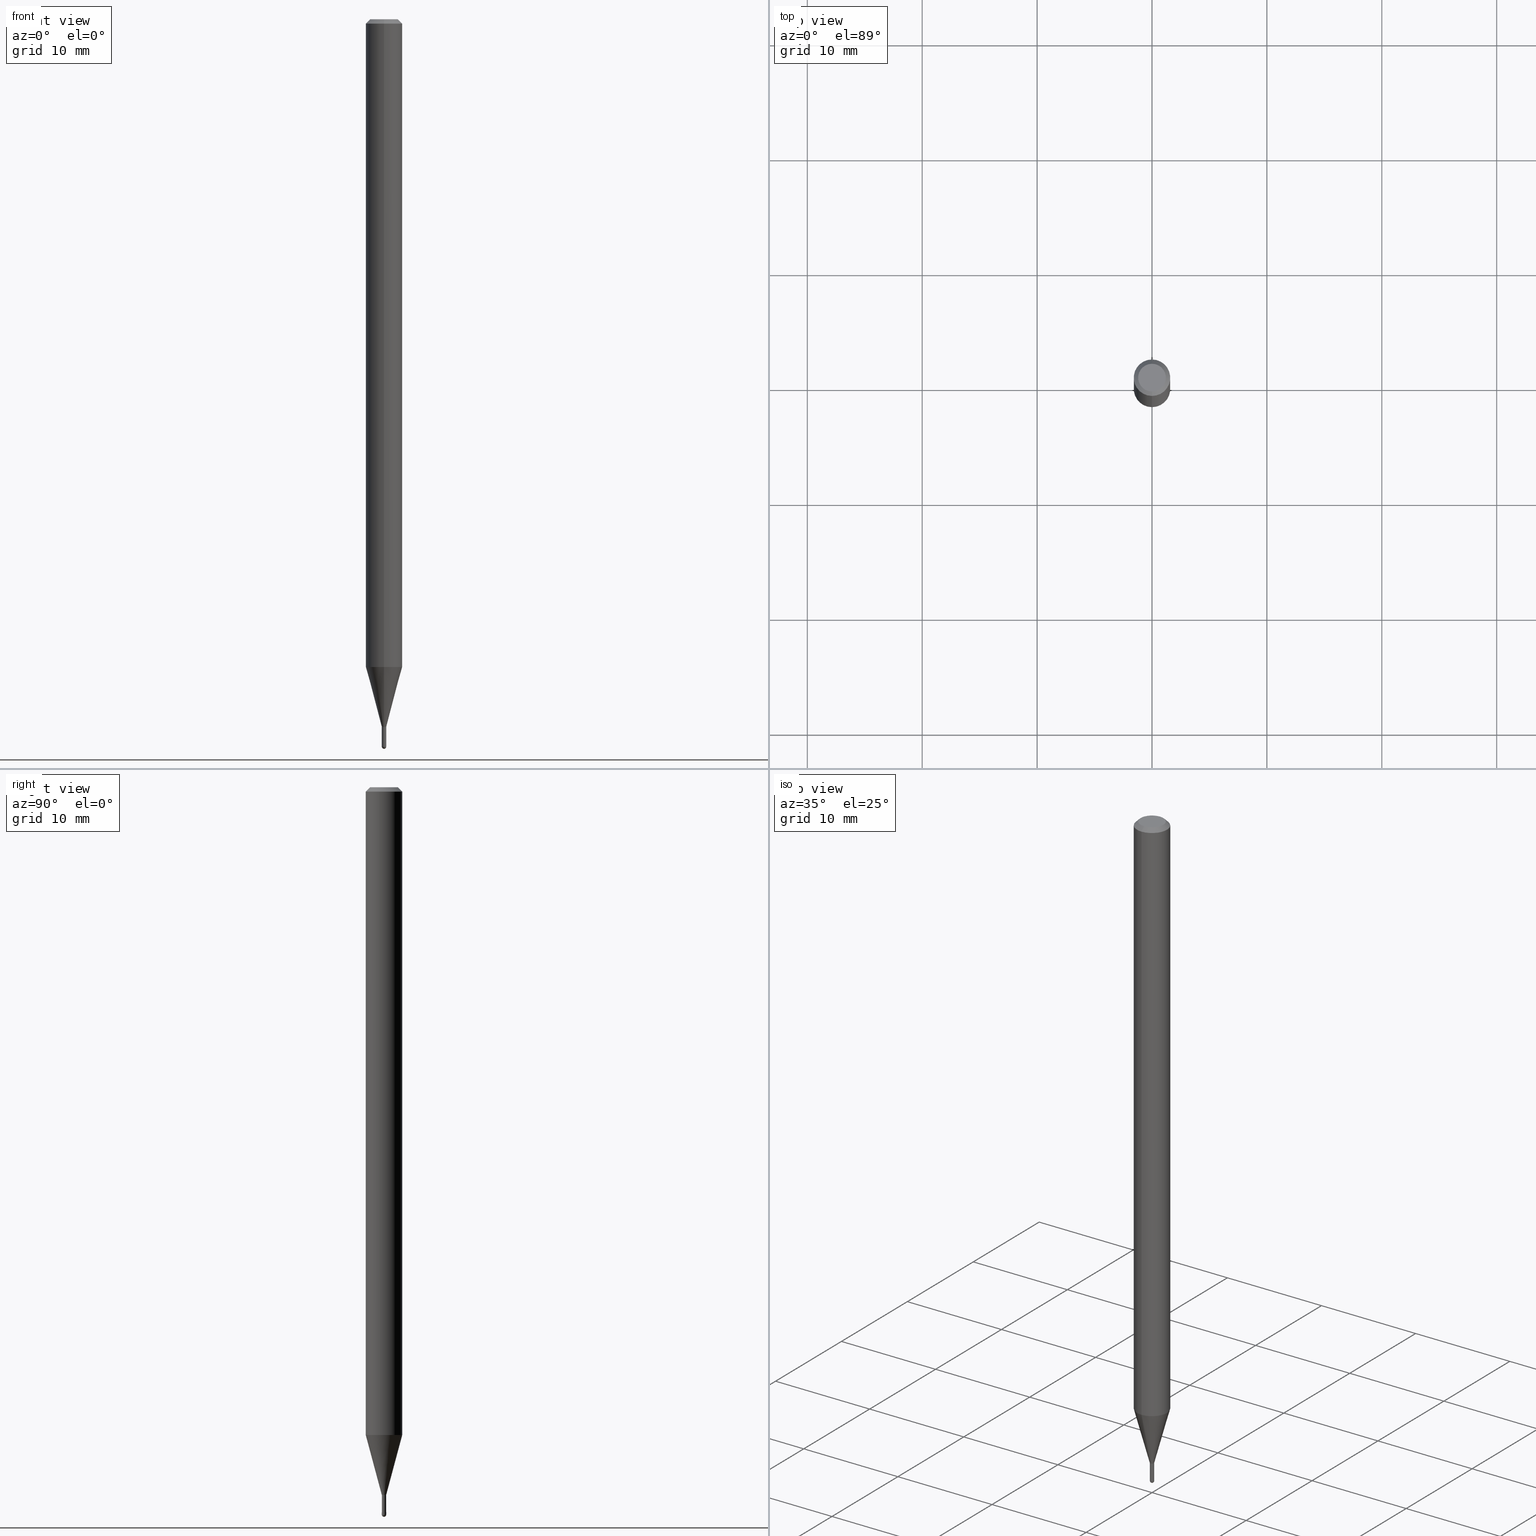
[diagram: canonical four-view strip — front | top / right | iso, engineering-drawing reading convention]
A machine part, canonical four-view strip (front | top / right | iso — engineering-drawing reading convention). The complete STEP part file that produces these views, byte-faithful:
ISO-10303-21;
HEADER;
FILE_DESCRIPTION (( 'STEP AP203' ),
    '1' );
FILE_NAME ('01500.STEP',
    '2024-03-07T19:35:34',
    ( '' ),
    ( '' ),
    'SwSTEP 2.0',
    'SolidWorks 2023',
    '' );
FILE_SCHEMA (( 'CONFIG_CONTROL_DESIGN' ));
ENDSEC;

DATA;
#1 = DIRECTION ( 'NONE',  ( -6.982962677686265922E-15, -1.000000000000000000, 3.483106191921935554E-15 ) ) ;
#2 = APPROVAL_ROLE ( '' ) ;
#3 = DIRECTION ( 'NONE',  ( 1.000000000000000000, -6.982962677686153115E-15, 0.000000000000000000 ) ) ;
#4 = ORIENTED_EDGE ( 'NONE', *, *, #381, .T. ) ;
#5 = EDGE_LOOP ( 'NONE', ( #114, #237, #392, #421 ) ) ;
#6 = DIRECTION ( 'NONE',  ( -6.982962677686265922E-15, -1.000000000000000000, 0.000000000000000000 ) ) ;
#7 = FACE_OUTER_BOUND ( 'NONE', #477, .T. ) ;
#8 = DIRECTION ( 'NONE',  ( -2.445325725904081225E-29, 3.491686237949240934E-15, 1.000000000000000000 ) ) ;
#9 = CIRCLE ( 'NONE', #50, 0.007499999999999925997 ) ;
#10 = DIRECTION ( 'NONE',  ( -2.445325725904081225E-29, 3.491686237949240540E-15, 1.000000000000000000 ) ) ;
#11 = DIRECTION ( 'NONE',  ( -2.445325725904081225E-29, 3.491686237949240540E-15, 1.000000000000000000 ) ) ;
#12 = EDGE_LOOP ( 'NONE', ( #331, #149, #401, #435, #500 ) ) ;
#13 = CARTESIAN_POINT ( 'NONE',  ( 4.364351673553919652E-16, 0.06249999999999995143, -0.01500000000000022669 ) ) ;
#14 = DIRECTION ( 'NONE',  ( 1.839019923739649225E-15, 0.2588190451025318417, 0.9659258262890653146 ) ) ;
#15 = VERTEX_POINT ( 'NONE', #157 ) ;
#16 = CARTESIAN_POINT ( 'NONE',  ( 3.667988588856124307E-31, -5.237529356923864655E-17, -0.01500000000000000812 ) ) ;
#17 = APPROVAL_ROLE ( '' ) ;
#18 = LOCAL_TIME ( 14, 35, 34.00000000000000000, #382 ) ;
#19 = ORIENTED_EDGE ( 'NONE', *, *, #365, .T. ) ;
#20 = CARTESIAN_POINT ( 'NONE',  ( 5.427980493560302591E-29, -7.750625852600574086E-15, -2.219737205583718342 ) ) ;
#21 = ORIENTED_EDGE ( 'NONE', *, *, #82, .F. ) ;
#22 = MECHANICAL_CONTEXT ( 'NONE', #184, 'mechanical' ) ;
#23 = VERTEX_POINT ( 'NONE', #39 ) ;
#24 = CC_DESIGN_DATE_AND_TIME_ASSIGNMENT ( #259, #181, ( #263 ) ) ;
#25 =( NAMED_UNIT ( * ) PLANE_ANGLE_UNIT ( ) SI_UNIT ( $, .RADIAN. ) );
#26 = ADVANCED_FACE ( 'NONE', ( #200 ), #486, .T. ) ;
#27 = FACE_OUTER_BOUND ( 'NONE', #88, .T. ) ;
#28 = APPROVAL_STATUS ( 'not_yet_approved' ) ;
#29 = LINE ( 'NONE', #307, #35 ) ;
#30 = EDGE_CURVE ( 'NONE', #112, #15, #357, .T. ) ;
#31 = DIRECTION ( 'NONE',  ( -6.982962677686265922E-15, -1.000000000000000000, 0.000000000000000000 ) ) ;
#32 = PERSON_AND_ORGANIZATION_ROLE ( 'design_supplier' ) ;
#33 = ORIENTED_EDGE ( 'NONE', *, *, #381, .F. ) ;
#34 = LOCAL_TIME ( 14, 35, 34.00000000000000000, #65 ) ;
#35 = VECTOR ( 'NONE', #105, 39.37007874015748143 ) ;
#36 = DIRECTION ( 'NONE',  ( -6.982962677686265922E-15, -1.000000000000000000, 0.000000000000000000 ) ) ;
#37 = CONICAL_SURFACE ( 'NONE', #326, 0.06250000000000000000, 0.7853981633974483900 ) ;
#38 = SECURITY_CLASSIFICATION_LEVEL ( 'unclassified' ) ;
#39 = CARTESIAN_POINT ( 'NONE',  ( -4.364351673553373859E-16, -0.06250000000000775768, -2.219737205583718342 ) ) ;
#40 = ORIENTED_EDGE ( 'NONE', *, *, #363, .T. ) ;
#41 = ORIENTED_EDGE ( 'NONE', *, *, #43, .F. ) ;
#42 = AXIS2_PLACEMENT_3D ( 'NONE', #409, #51, #167 ) ;
#43 = EDGE_CURVE ( 'NONE', #361, #60, #195, .T. ) ;
#44 = FACE_OUTER_BOUND ( 'NONE', #256, .T. ) ;
#45 = APPROVAL ( #28, 'UNSPECIFIED' ) ;
#46 = CYLINDRICAL_SURFACE ( 'NONE', #177, 0.06250000000000000000 ) ;
#47 = LINE ( 'NONE', #288, #208 ) ;
#48 = CARTESIAN_POINT ( 'NONE',  ( 3.840629472727447874E-16, 0.04749999999999999362, -1.747056831868805136E-16 ) ) ;
#49 = DIRECTION ( 'NONE',  ( -2.445468806185136597E-29, 3.491481338843145583E-15, 1.000000000000000000 ) ) ;
#50 = AXIS2_PLACEMENT_3D ( 'NONE', #452, #254, #282 ) ;
#51 = DIRECTION ( 'NONE',  ( -2.445468806185136597E-29, 3.491481338843145583E-15, 1.000000000000000000 ) ) ;
#52 = DIRECTION ( 'NONE',  ( -4.851104656540964275E-15, -0.7071067811865500152, -0.7071067811865450192 ) ) ;
#53 = ORIENTED_EDGE ( 'NONE', *, *, #277, .F. ) ;
#54 = FACE_OUTER_BOUND ( 'NONE', #512, .T. ) ;
#55 = ORIENTED_EDGE ( 'NONE', *, *, #158, .F. ) ;
#56 = ORIENTED_EDGE ( 'NONE', *, *, #69, .T. ) ;
#57 = AXIS2_PLACEMENT_3D ( 'NONE', #231, #70, #387 ) ;
#58 = ADVANCED_FACE ( 'NONE', ( #437 ), #74, .F. ) ;
#59 = CARTESIAN_POINT ( 'NONE',  ( 5.427980493560302591E-29, -7.750625852600574086E-15, -2.219737205583718342 ) ) ;
#60 = VERTEX_POINT ( 'NONE', #484 ) ;
#61 = CC_DESIGN_PERSON_AND_ORGANIZATION_ASSIGNMENT ( #431, #32, ( #352 ) ) ;
#62 = DIRECTION ( 'NONE',  ( -6.982962677686265922E-15, -1.000000000000000000, 4.370956789862821150E-15 ) ) ;
#63 = DIRECTION ( 'NONE',  ( 2.445325725904081225E-29, -3.491686237949240934E-15, -1.000000000000000000 ) ) ;
#64 = DIRECTION ( 'NONE',  ( -6.982962677686265922E-15, -1.000000000000000000, 0.000000000000000000 ) ) ;
#65 = COORDINATED_UNIVERSAL_TIME_OFFSET ( 5, 0, .BEHIND. ) ;
#66 = ADVANCED_FACE ( 'NONE', ( #7 ), #164, .F. ) ;
#67 = CARTESIAN_POINT ( 'NONE',  ( 3.667988588856124307E-31, -5.237529356923864655E-17, -0.01500000000000000812 ) ) ;
#68 = EDGE_LOOP ( 'NONE', ( #94, #469, #41, #55, #489 ) ) ;
#69 = EDGE_CURVE ( 'NONE', #179, #418, #132, .T. ) ;
#70 = DIRECTION ( 'NONE',  ( -2.445468806185136597E-29, 3.491481338843145583E-15, 1.000000000000000000 ) ) ;
#71 = ORIENTED_EDGE ( 'NONE', *, *, #360, .F. ) ;
#72 = CIRCLE ( 'NONE', #368, 0.007000000000000122444 ) ;
#73 = APPROVAL_DATE_TIME ( #270, #446 ) ;
#74 = PLANE ( 'NONE',  #423 ) ;
#75 = ORIENTED_EDGE ( 'NONE', *, *, #116, .T. ) ;
#76 = ADVANCED_FACE ( 'NONE', ( #89 ), #247, .F. ) ;
#77 = ADVANCED_FACE ( 'NONE', ( #54 ), #37, .T. ) ;
#78 = APPROVAL_PERSON_ORGANIZATION ( #456, #45, #17 ) ;
#79 = FACE_OUTER_BOUND ( 'NONE', #92, .T. ) ;
#80 = DIRECTION ( 'NONE',  ( -1.000000000000000000, 7.105427357601001070E-15, -4.926315508542082329E-29 ) ) ;
#81 = CARTESIAN_POINT ( 'NONE',  ( 0.007500000000000124623, -8.637051961963230878E-15, -2.492500000000000160 ) ) ;
#82 = EDGE_CURVE ( 'NONE', #15, #475, #461, .T. ) ;
#83 = DIRECTION ( 'NONE',  ( -2.445325725904081225E-29, 3.491686237949240934E-15, 1.000000000000000000 ) ) ;
#84 = CARTESIAN_POINT ( 'NONE',  ( 0.007500000000000122888, -8.519214466777275048E-15, -2.424999999999999822 ) ) ;
#85 = APPROVAL_PERSON_ORGANIZATION ( #474, #152, #2 ) ;
#86 = DIRECTION ( 'NONE',  ( -6.982962677686265922E-15, -1.000000000000000000, 3.483106191921935554E-15 ) ) ;
#87 = CARTESIAN_POINT ( 'NONE',  ( 6.095330999416453954E-29, -8.702517237066541600E-15, -2.492500000000000160 ) ) ;
#88 = EDGE_LOOP ( 'NONE', ( #176, #494 ) ) ;
#89 = FACE_OUTER_BOUND ( 'NONE', #216, .T. ) ;
#90 = ADVANCED_BREP_SHAPE_REPRESENTATION ( '01500', ( #194, #199, #324 ), #173 ) ;
#91 = LINE ( 'NONE', #126, #438 ) ;
#92 = EDGE_LOOP ( 'NONE', ( #375, #239, #134, #130 ) ) ;
#93 = COORDINATED_UNIVERSAL_TIME_OFFSET ( 5, 0, .BEHIND. ) ;
#94 = ORIENTED_EDGE ( 'NONE', *, *, #30, .T. ) ;
#95 = CALENDAR_DATE ( 2024, 7, 3 ) ;
#96 = AXIS2_PLACEMENT_3D ( 'NONE', #323, #481, #198 ) ;
#97 = AXIS2_PLACEMENT_3D ( 'NONE', #485, #49, #129 ) ;
#98 = EDGE_LOOP ( 'NONE', ( #33, #284, #182, #450 ) ) ;
#99 = AXIS2_PLACEMENT_3D ( 'NONE', #154, #359, #319 ) ;
#100 = PERSON_AND_ORGANIZATION_ROLE ( 'creator' ) ;
#101 = CARTESIAN_POINT ( 'NONE',  ( 5.929914885317396466E-29, -8.467339127026908092E-15, -2.424999999999999822 ) ) ;
#102 = CARTESIAN_POINT ( 'NONE',  ( 0.000000000000000000, 0.000000000000000000, 0.000000000000000000 ) ) ;
#103 = LINE ( 'NONE', #345, #325 ) ;
#104 = AXIS2_PLACEMENT_3D ( 'NONE', #234, #229, #196 ) ;
#105 = DIRECTION ( 'NONE',  ( -4.937700262164674260E-15, -0.7071067811865632269, 0.7071067811865319186 ) ) ;
#106 = ORIENTED_EDGE ( 'NONE', *, *, #116, .F. ) ;
#107 = EDGE_CURVE ( 'NONE', #273, #418, #329, .T. ) ;
#108 = DIRECTION ( 'NONE',  ( -1.000000000000000000, 6.982962677686265922E-15, -4.876176775795935793E-29 ) ) ;
#109 = SHAPE_DEFINITION_REPRESENTATION ( #136, #90 ) ;
#110 = EDGE_LOOP ( 'NONE', ( #439, #4, #302, #155 ) ) ;
#111 = CALENDAR_DATE ( 2024, 7, 3 ) ;
#112 = VERTEX_POINT ( 'NONE', #213 ) ;
#113 = VECTOR ( 'NONE', #14, 39.37007874015748143 ) ;
#114 = ORIENTED_EDGE ( 'NONE', *, *, #365, .F. ) ;
#115 = EDGE_CURVE ( 'NONE', #298, #425, #203, .T. ) ;
#116 = EDGE_CURVE ( 'NONE', #459, #418, #272, .T. ) ;
#117 = AXIS2_PLACEMENT_3D ( 'NONE', #226, #424, #504 ) ;
#118 = AXIS2_PLACEMENT_3D ( 'NONE', #441, #8, #413 ) ;
#119 = CARTESIAN_POINT ( 'NONE',  ( 6.198867957022339690E-29, -8.606697909742809641E-15, -2.500000000000000000 ) ) ;
#120 = AXIS2_PLACEMENT_3D ( 'NONE', #356, #143, #3 ) ;
#121 = CONICAL_SURFACE ( 'NONE', #403, 0.007500000000000048295, 0.2617993877991574014 ) ;
#122 = CARTESIAN_POINT ( 'NONE',  ( 5.929914885317395344E-29, -8.467339127026908092E-15, -2.424999999999999822 ) ) ;
#123 = CARTESIAN_POINT ( 'NONE',  ( 5.929914885317395344E-29, -8.467339127026908092E-15, -2.424999999999999822 ) ) ;
#124 = DIRECTION ( 'NONE',  ( 5.024295867788190974E-15, 0.7071067811865681119, 0.7071067811865270336 ) ) ;
#125 = DIRECTION ( 'NONE',  ( 2.445325725904081225E-29, -3.491686237949240934E-15, -1.000000000000000000 ) ) ;
#126 = CARTESIAN_POINT ( 'NONE',  ( -4.364351673553916201E-16, -0.06250000000000000000, 2.182303898718275337E-16 ) ) ;
#127 = ORIENTED_EDGE ( 'NONE', *, *, #360, .T. ) ;
#128 = DIRECTION ( 'NONE',  ( -2.445325725904081225E-29, 3.491686237949240934E-15, 1.000000000000000000 ) ) ;
#129 = DIRECTION ( 'NONE',  ( 1.000000000000000000, -6.982962677686153115E-15, 0.000000000000000000 ) ) ;
#130 = ORIENTED_EDGE ( 'NONE', *, *, #449, .F. ) ;
#131 = CIRCLE ( 'NONE', #362, 0.007499999999999925997 ) ;
#132 = LINE ( 'NONE', #13, #483 ) ;
#133 = EDGE_CURVE ( 'NONE', #166, #475, #131, .T. ) ;
#134 = ORIENTED_EDGE ( 'NONE', *, *, #321, .F. ) ;
#135 = CC_DESIGN_PERSON_AND_ORGANIZATION_ASSIGNMENT ( #278, #314, ( #352 ) ) ;
#136 = PRODUCT_DEFINITION_SHAPE ( 'NONE', 'NONE',  #263 ) ;
#137 = ORIENTED_EDGE ( 'NONE', *, *, #207, .F. ) ;
#138 = DIRECTION ( 'NONE',  ( 0.000000000000000000, 0.000000000000000000, 1.000000000000000000 ) ) ;
#139 = CIRCLE ( 'NONE', #422, 0.007500000000000046560 ) ;
#140 = CARTESIAN_POINT ( 'NONE',  ( 5.329070518206695387E-17, 0.007499999999991556823, -2.424499999999999655 ) ) ;
#141 = CARTESIAN_POINT ( 'NONE',  ( 5.237222008270715590E-17, 0.007499999999991656570, -2.424999999999999822 ) ) ;
#142 = CARTESIAN_POINT ( 'NONE',  ( 0.000000000000000000, 0.000000000000000000, 0.000000000000000000 ) ) ;
#143 = DIRECTION ( 'NONE',  ( -2.445468806185136597E-29, 3.491481338843145583E-15, 1.000000000000000000 ) ) ;
#144 = AXIS2_PLACEMENT_3D ( 'NONE', #287, #245, #205 ) ;
#145 = CC_DESIGN_APPROVAL ( #446, ( #352 ) ) ;
#146 = CONICAL_SURFACE ( 'NONE', #427, 0.06250000000000000000, 0.7853981633974483900 ) ;
#147 = CYLINDRICAL_SURFACE ( 'NONE', #57, 0.007500000000000122888 ) ;
#148 = PERSON_AND_ORGANIZATION ( #264, #467 ) ;
#149 = ORIENTED_EDGE ( 'NONE', *, *, #82, .T. ) ;
#150 = ADVANCED_FACE ( 'NONE', ( #490 ), #46, .T. ) ;
#151 = FACE_OUTER_BOUND ( 'NONE', #453, .T. ) ;
#152 = APPROVAL ( #436, 'UNSPECIFIED' ) ;
#153 = APPROVAL_ROLE ( '' ) ;
#154 = CARTESIAN_POINT ( 'NONE',  ( 5.930261854998954902E-29, -8.466842246694626786E-15, -2.424999999999999822 ) ) ;
#155 = ORIENTED_EDGE ( 'NONE', *, *, #506, .F. ) ;
#156 = ORIENTED_EDGE ( 'NONE', *, *, #107, .F. ) ;
#157 = CARTESIAN_POINT ( 'NONE',  ( -0.007500000000000124623, -8.531389036698576237E-15, -2.492500000000000160 ) ) ;
#158 = EDGE_CURVE ( 'NONE', #335, #361, #454, .T. ) ;
#159 = EDGE_CURVE ( 'NONE', #170, #179, #406, .T. ) ;
#160 = SPHERICAL_SURFACE ( 'NONE', #96, 0.007499999999999925997 ) ;
#161 = AXIS2_PLACEMENT_3D ( 'NONE', #268, #165, #333 ) ;
#162 = DIRECTION ( 'NONE',  ( 6.982962677686265922E-15, 1.000000000000000000, -3.491686237949240540E-15 ) ) ;
#163 = CARTESIAN_POINT ( 'NONE',  ( 5.929914885317395344E-29, -8.467339127026908092E-15, -2.424999999999999822 ) ) ;
#164 = PLANE ( 'NONE',  #260 ) ;
#165 = DIRECTION ( 'NONE',  ( -2.445325725904081225E-29, 3.491686237949240934E-15, 1.000000000000000000 ) ) ;
#166 = VERTEX_POINT ( 'NONE', #119 ) ;
#167 = DIRECTION ( 'NONE',  ( 1.000000000000000000, -6.982962677686153115E-15, 0.000000000000000000 ) ) ;
#168 = EDGE_CURVE ( 'NONE', #179, #170, #493, .T. ) ;
#169 = CARTESIAN_POINT ( 'NONE',  ( 6.180206253617509250E-29, -8.580971042251167723E-15, -2.492500000000000160 ) ) ;
#170 = VERTEX_POINT ( 'NONE', #366 ) ;
#171 = LOCAL_TIME ( 14, 35, 34.00000000000000000, #353 ) ;
#172 = AXIS2_PLACEMENT_3D ( 'NONE', #141, #348, #108 ) ;
#173 =( GEOMETRIC_REPRESENTATION_CONTEXT ( 3 ) GLOBAL_UNCERTAINTY_ASSIGNED_CONTEXT ( ( #414 ) ) GLOBAL_UNIT_ASSIGNED_CONTEXT ( ( #344, #25, #218 ) ) REPRESENTATION_CONTEXT ( 'NONE', 'WORKASPACE' ) );
#174 = DIRECTION ( 'NONE',  ( -2.445468806185136877E-29, 3.491481338843145188E-15, 1.000000000000000000 ) ) ;
#175 = CALENDAR_DATE ( 2024, 7, 3 ) ;
#176 = ORIENTED_EDGE ( 'NONE', *, *, #43, .T. ) ;
#177 = AXIS2_PLACEMENT_3D ( 'NONE', #411, #128, #296 ) ;
#178 = DIRECTION ( 'NONE',  ( -2.445325725904081225E-29, 3.491686237949240934E-15, 1.000000000000000000 ) ) ;
#179 = VERTEX_POINT ( 'NONE', #48 ) ;
#180 = ADVANCED_FACE ( 'NONE', ( #209 ), #146, .T. ) ;
#181 = DATE_TIME_ROLE ( 'creation_date' ) ;
#182 = ORIENTED_EDGE ( 'NONE', *, *, #506, .T. ) ;
#183 = DIRECTION ( 'NONE',  ( -2.445325725904081225E-29, 3.491686237949240934E-15, 1.000000000000000000 ) ) ;
#184 = APPLICATION_CONTEXT ( 'configuration controlled 3d designs of mechanical parts and assemblies' ) ;
#185 = CARTESIAN_POINT ( 'NONE',  ( 5.928692222454444399E-29, -8.465593283907933867E-15, -2.424499999999999655 ) ) ;
#186 = CALENDAR_DATE ( 2024, 7, 3 ) ;
#187 = ORIENTED_EDGE ( 'NONE', *, *, #303, .T. ) ;
#188 = DIRECTION ( 'NONE',  ( -2.445325725904081225E-29, 3.491686237949240934E-15, 1.000000000000000000 ) ) ;
#189 = PERSON_AND_ORGANIZATION ( #264, #467 ) ;
#190 = ORIENTED_EDGE ( 'NONE', *, *, #212, .F. ) ;
#191 = ADVANCED_FACE ( 'NONE', ( #266 ), #121, .T. ) ;
#192 = VECTOR ( 'NONE', #497, 39.37007874015748854 ) ;
#193 = VECTOR ( 'NONE', #124, 39.37007874015748143 ) ;
#194 = MANIFOLD_SOLID_BREP ( 'Body-Move/Copy2[1]', #341 ) ;
#195 = CIRCLE ( 'NONE', #99, 0.007500000000000122888 ) ;
#196 = DIRECTION ( 'NONE',  ( -6.982962677686265922E-15, -1.000000000000000000, 0.000000000000000000 ) ) ;
#197 = DATE_TIME_ROLE ( 'classification_date' ) ;
#198 = DIRECTION ( 'NONE',  ( 6.982962677686265922E-15, 1.000000000000000000, 0.000000000000000000 ) ) ;
#199 = MANIFOLD_SOLID_BREP ( 'Body-Move/Copy2[2]', #289 ) ;
#200 = FACE_OUTER_BOUND ( 'NONE', #457, .T. ) ;
#201 = ORIENTED_EDGE ( 'NONE', *, *, #159, .F. ) ;
#202 = CONICAL_SURFACE ( 'NONE', #269, 0.007500000000000048295, 0.2617993877991574014 ) ;
#203 = CIRCLE ( 'NONE', #498, 0.007500000000000048295 ) ;
#204 = ADVANCED_FACE ( 'NONE', ( #472 ), #202, .T. ) ;
#205 = DIRECTION ( 'NONE',  ( -6.982962677686266711E-15, -1.000000000000000000, 3.491686237949241329E-15 ) ) ;
#206 = CARTESIAN_POINT ( 'NONE',  ( 4.973799150326717702E-17, 0.006999999999991654391, -2.424999999999999822 ) ) ;
#207 = EDGE_CURVE ( 'NONE', #425, #298, #336, .T. ) ;
#208 = VECTOR ( 'NONE', #52, 39.37007874015748143 ) ;
#209 = FACE_OUTER_BOUND ( 'NONE', #383, .T. ) ;
#210 = DIRECTION ( 'NONE',  ( -2.445325725904081225E-29, 3.491686237949240934E-15, 1.000000000000000000 ) ) ;
#211 = EDGE_LOOP ( 'NONE', ( #156, #301, #378, #190 ) ) ;
#212 = EDGE_CURVE ( 'NONE', #418, #459, #242, .T. ) ;
#213 = CARTESIAN_POINT ( 'NONE',  ( 5.237222008270854874E-17, 0.007499999999991383351, -2.492500000000000160 ) ) ;
#214 = DIRECTION ( 'NONE',  ( -2.445325725904081225E-29, 3.491686237949240540E-15, 1.000000000000000000 ) ) ;
#215 = DESIGN_CONTEXT ( 'detailed design', #241, 'design' ) ;
#216 = EDGE_LOOP ( 'NONE', ( #402, #187, #240, #499 ) ) ;
#217 = DIRECTION ( 'NONE',  ( -2.445325725904081225E-29, 3.491686237949240934E-15, 1.000000000000000000 ) ) ;
#218 =( NAMED_UNIT ( * ) SI_UNIT ( $, .STERADIAN. ) SOLID_ANGLE_UNIT ( ) );
#219 = ADVANCED_FACE ( 'NONE', ( #426 ), #147, .T. ) ;
#220 = ORIENTED_EDGE ( 'NONE', *, *, #419, .F. ) ;
#221 = SECURITY_CLASSIFICATION ( '', '', #38 ) ;
#222 = CARTESIAN_POINT ( 'NONE',  ( -5.329070518194631362E-17, -0.007500000000008666401, -2.492500000000000160 ) ) ;
#223 = AXIS2_PLACEMENT_3D ( 'NONE', #142, #463, #271 ) ;
#224 = VERTEX_POINT ( 'NONE', #390 ) ;
#225 = ADVANCED_FACE ( 'NONE', ( #275 ), #434, .T. ) ;
#226 = CARTESIAN_POINT ( 'NONE',  ( 5.930261854998954902E-29, -8.466842246694626786E-15, -2.424999999999999822 ) ) ;
#227 = ORIENTED_EDGE ( 'NONE', *, *, #308, .T. ) ;
#228 = DIRECTION ( 'NONE',  ( -2.445325725904081225E-29, 3.491686237949240934E-15, 1.000000000000000000 ) ) ;
#229 = DIRECTION ( 'NONE',  ( -2.445325725904081225E-29, 3.491686237949240934E-15, 1.000000000000000000 ) ) ;
#230 = PERSON_AND_ORGANIZATION ( #264, #467 ) ;
#231 = CARTESIAN_POINT ( 'NONE',  ( 0.000000000000000000, 0.000000000000000000, 0.000000000000000000 ) ) ;
#232 = PERSON_AND_ORGANIZATION_ROLE ( 'classification_officer' ) ;
#233 = ADVANCED_FACE ( 'NONE', ( #355 ), #351, .T. ) ;
#234 = CARTESIAN_POINT ( 'NONE',  ( 5.929914885317396466E-29, -8.467339127026908092E-15, -2.424999999999999822 ) ) ;
#235 = VERTEX_POINT ( 'NONE', #393 ) ;
#236 = CARTESIAN_POINT ( 'NONE',  ( 2.486899575160921825E-16, 0.007499999999991580242, -2.424999999999999822 ) ) ;
#237 = ORIENTED_EDGE ( 'NONE', *, *, #419, .T. ) ;
#238 = AXIS2_PLACEMENT_3D ( 'NONE', #169, #367, #291 ) ;
#239 = ORIENTED_EDGE ( 'NONE', *, *, #416, .T. ) ;
#240 = ORIENTED_EDGE ( 'NONE', *, *, #316, .T. ) ;
#241 = APPLICATION_CONTEXT ( 'configuration controlled 3d designs of mechanical parts and assemblies' ) ;
#242 = CIRCLE ( 'NONE', #380, 0.06250000000000000000 ) ;
#243 = LOCAL_TIME ( 14, 35, 34.00000000000000000, #93 ) ;
#244 = DIRECTION ( 'NONE',  ( -2.445468806185136597E-29, 3.491481338843145583E-15, 1.000000000000000000 ) ) ;
#245 = DIRECTION ( 'NONE',  ( -2.445325725904081225E-29, 3.491686237949240934E-15, 1.000000000000000000 ) ) ;
#246 = CARTESIAN_POINT ( 'NONE',  ( -0.007500000000000122888, 5.329070518200838711E-17, -3.689201317691239259E-31 ) ) ;
#247 = CYLINDRICAL_SURFACE ( 'NONE', #398, 0.007500000000000048295 ) ;
#248 = DIRECTION ( 'NONE',  ( -2.445468806185136877E-29, 3.491481338843145188E-15, 1.000000000000000000 ) ) ;
#249 = DIRECTION ( 'NONE',  ( 4.937700262164548042E-15, 0.7071067811865451302, -0.7071067811865499042 ) ) ;
#250 = DIRECTION ( 'NONE',  ( 1.000000000000000000, -6.982962677686153115E-15, 0.000000000000000000 ) ) ;
#251 = ORIENTED_EDGE ( 'NONE', *, *, #168, .T. ) ;
#252 = CARTESIAN_POINT ( 'NONE',  ( 0.000000000000000000, 0.000000000000000000, 0.000000000000000000 ) ) ;
#253 = ADVANCED_FACE ( 'NONE', ( #151 ), #306, .F. ) ;
#254 = DIRECTION ( 'NONE',  ( 1.000000000000000000, -6.982962677686265922E-15, 4.883557194083112340E-29 ) ) ;
#255 = ORIENTED_EDGE ( 'NONE', *, *, #133, .T. ) ;
#256 = EDGE_LOOP ( 'NONE', ( #386, #255, #21, #343 ) ) ;
#257 = AXIS2_PLACEMENT_3D ( 'NONE', #87, #244, #250 ) ;
#258 = CONICAL_SURFACE ( 'NONE', #280, 0.007000000000000122444, 0.7853981633974739252 ) ;
#259 = DATE_AND_TIME ( #95, #18 ) ;
#260 = AXIS2_PLACEMENT_3D ( 'NONE', #412, #487, #162 ) ;
#261 = ORIENTED_EDGE ( 'NONE', *, *, #107, .T. ) ;
#262 = LINE ( 'NONE', #338, #192 ) ;
#263 = PRODUCT_DEFINITION ( 'UNKNOWN', '', #352, #215 ) ;
#264 = PERSON ( 'UNSPECIFIED', 'UNSPECIFIED', 'UNSPECIFIED', ('UNSPECIFIED'), ('UNSPECIFIED'), ('UNSPECIFIED') ) ;
#265 = PRODUCT ( '01500', '01500', '', ( #22 ) ) ;
#266 = FACE_OUTER_BOUND ( 'NONE', #98, .T. ) ;
#267 = ADVANCED_FACE ( 'NONE', ( #27 ), #313, .F. ) ;
#268 = CARTESIAN_POINT ( 'NONE',  ( 5.928692222454444399E-29, -8.465593283907933867E-15, -2.424499999999999655 ) ) ;
#269 = AXIS2_PLACEMENT_3D ( 'NONE', #349, #188, #31 ) ;
#270 = DATE_AND_TIME ( #476, #34 ) ;
#271 = DIRECTION ( 'NONE',  ( -6.982962677686265922E-15, -1.000000000000000000, 3.491686237949240540E-15 ) ) ;
#272 = CIRCLE ( 'NONE', #340, 0.06250000000000000000 ) ;
#273 = VERTEX_POINT ( 'NONE', #505 ) ;
#274 = AXIS2_PLACEMENT_3D ( 'NONE', #354, #276, #350 ) ;
#275 = FACE_OUTER_BOUND ( 'NONE', #68, .T. ) ;
#276 = DIRECTION ( 'NONE',  ( -2.445325725904081225E-29, 3.491686237949240934E-15, 1.000000000000000000 ) ) ;
#277 = EDGE_CURVE ( 'NONE', #224, #440, #29, .T. ) ;
#278 = PERSON_AND_ORGANIZATION ( #264, #467 ) ;
#279 = ORIENTED_EDGE ( 'NONE', *, *, #303, .F. ) ;
#280 = AXIS2_PLACEMENT_3D ( 'NONE', #122, #293, #448 ) ;
#281 = ORIENTED_EDGE ( 'NONE', *, *, #212, .T. ) ;
#282 = DIRECTION ( 'NONE',  ( 6.982962677686266711E-15, 1.000000000000000000, 0.000000000000000000 ) ) ;
#283 = AXIS2_PLACEMENT_3D ( 'NONE', #20, #228, #300 ) ;
#284 = ORIENTED_EDGE ( 'NONE', *, *, #115, .T. ) ;
#285 = AXIS2_PLACEMENT_3D ( 'NONE', #442, #337, #479 ) ;
#286 = CC_DESIGN_PERSON_AND_ORGANIZATION_ASSIGNMENT ( #420, #100, ( #263 ) ) ;
#287 = CARTESIAN_POINT ( 'NONE',  ( 2.164256779750745039E-46, -3.090347242165496582E-32, -8.850586884291580234E-18 ) ) ;
#288 = CARTESIAN_POINT ( 'NONE',  ( -4.287811248607203282E-16, -0.06250000000000005551, -0.01499999999999979128 ) ) ;
#289 = CLOSED_SHELL ( 'NONE', ( #76, #26, #180, #150, #204, #191, #233, #77, #66, #58, #408, #253 ) ) ;
#290 = DIRECTION ( 'NONE',  ( -6.982962677686265922E-15, -1.000000000000000000, 3.491686237949240934E-15 ) ) ;
#291 = DIRECTION ( 'NONE',  ( 6.982962677686265922E-15, 1.000000000000000000, 0.000000000000000000 ) ) ;
#292 = DIRECTION ( 'NONE',  ( -2.445325725904080944E-29, 3.491686237949240540E-15, 1.000000000000000000 ) ) ;
#293 = DIRECTION ( 'NONE',  ( -2.445325725904081225E-29, 3.491686237949240934E-15, 1.000000000000000000 ) ) ;
#294 = CC_DESIGN_SECURITY_CLASSIFICATION ( #221, ( #352 ) ) ;
#295 = ORIENTED_EDGE ( 'NONE', *, *, #159, .T. ) ;
#296 = DIRECTION ( 'NONE',  ( -6.982962677686265922E-15, -1.000000000000000000, 3.491686237949240540E-15 ) ) ;
#297 = LINE ( 'NONE', #374, #113 ) ;
#298 = VERTEX_POINT ( 'NONE', #236 ) ;
#299 = DIRECTION ( 'NONE',  ( 6.982962677686265922E-15, 1.000000000000000000, -3.483106191921935554E-15 ) ) ;
#300 = DIRECTION ( 'NONE',  ( -6.982962677686265922E-15, -1.000000000000000000, 4.370956789862821150E-15 ) ) ;
#301 = ORIENTED_EDGE ( 'NONE', *, *, #509, .T. ) ;
#302 = ORIENTED_EDGE ( 'NONE', *, *, #495, .F. ) ;
#303 = EDGE_CURVE ( 'NONE', #298, #315, #103, .T. ) ;
#304 = CIRCLE ( 'NONE', #118, 0.007000000000000122444 ) ;
#305 = LENGTH_MEASURE_WITH_UNIT ( LENGTH_MEASURE( 0.02539999999999999897 ), #377 );
#306 = CYLINDRICAL_SURFACE ( 'NONE', #310, 0.007500000000000048295 ) ;
#307 = CARTESIAN_POINT ( 'NONE',  ( -4.888073874374541287E-17, -0.007000000000008589629, -2.424999999999999822 ) ) ;
#308 = EDGE_CURVE ( 'NONE', #440, #315, #139, .T. ) ;
#309 = DIRECTION ( 'NONE',  ( -2.445468806185136597E-29, 3.491481338843145583E-15, 1.000000000000000000 ) ) ;
#310 = AXIS2_PLACEMENT_3D ( 'NONE', #317, #503, #389 ) ;
#311 = AXIS2_PLACEMENT_3D ( 'NONE', #59, #178, #62 ) ;
#312 = ORIENTED_EDGE ( 'NONE', *, *, #495, .T. ) ;
#313 = PLANE ( 'NONE',  #172 ) ;
#314 = PERSON_AND_ORGANIZATION_ROLE ( 'creator' ) ;
#315 = VERTEX_POINT ( 'NONE', #140 ) ;
#316 = EDGE_CURVE ( 'NONE', #315, #440, #482, .T. ) ;
#317 = CARTESIAN_POINT ( 'NONE',  ( 0.000000000000000000, 0.000000000000000000, 0.000000000000000000 ) ) ;
#318 = APPROVAL_STATUS ( 'not_yet_approved' ) ;
#319 = DIRECTION ( 'NONE',  ( 1.000000000000000000, -6.982962677686282488E-15, 0.000000000000000000 ) ) ;
#320 = ORIENTED_EDGE ( 'NONE', *, *, #69, .F. ) ;
#321 = EDGE_CURVE ( 'NONE', #335, #112, #502, .T. ) ;
#322 = EDGE_CURVE ( 'NONE', #23, #459, #91, .T. ) ;
#323 = CARTESIAN_POINT ( 'NONE',  ( 6.180206253617509250E-29, -8.580971042251167723E-15, -2.492500000000000160 ) ) ;
#324 = AXIS2_PLACEMENT_3D ( 'NONE', #102, #138, #347 ) ;
#325 = VECTOR ( 'NONE', #468, 39.37007874015748143 ) ;
#326 = AXIS2_PLACEMENT_3D ( 'NONE', #327, #125, #299 ) ;
#327 = CARTESIAN_POINT ( 'NONE',  ( 3.667988588856124307E-31, -5.237529356923864655E-17, -0.01500000000000000812 ) ) ;
#328 = CARTESIAN_POINT ( 'NONE',  ( -5.237222008258802558E-17, -0.007500000000008515480, -2.424999999999999822 ) ) ;
#329 = LINE ( 'NONE', #373, #429 ) ;
#330 = LINE ( 'NONE', #206, #193 ) ;
#331 = ORIENTED_EDGE ( 'NONE', *, *, #342, .F. ) ;
#332 = DIRECTION ( 'NONE',  ( -7.105427357601001070E-15, -1.000000000000000000, 0.000000000000000000 ) ) ;
#333 = DIRECTION ( 'NONE',  ( -6.982962677686265922E-15, -1.000000000000000000, 0.000000000000000000 ) ) ;
#334 = CC_DESIGN_APPROVAL ( #152, ( #221 ) ) ;
#335 = VERTEX_POINT ( 'NONE', #81 ) ;
#336 = CIRCLE ( 'NONE', #104, 0.007500000000000048295 ) ;
#337 = DIRECTION ( 'NONE',  ( -2.445325725904081225E-29, 3.491686237949240934E-15, 1.000000000000000000 ) ) ;
#338 = CARTESIAN_POINT ( 'NONE',  ( -5.237222008258802558E-17, -0.007500000000008515480, -2.424999999999999822 ) ) ;
#339 = ORIENTED_EDGE ( 'NONE', *, *, #168, .F. ) ;
#340 = AXIS2_PLACEMENT_3D ( 'NONE', #16, #83, #86 ) ;
#341 = CLOSED_SHELL ( 'NONE', ( #225, #455, #267, #405, #219 ) ) ;
#342 = EDGE_CURVE ( 'NONE', #15, #60, #443, .T. ) ;
#343 = ORIENTED_EDGE ( 'NONE', *, *, #30, .F. ) ;
#344 =( CONVERSION_BASED_UNIT ( 'INCH', #305 ) LENGTH_UNIT ( ) NAMED_UNIT ( #372 ) );
#345 = CARTESIAN_POINT ( 'NONE',  ( 5.329070518200784477E-17, 0.007500000000000048295, -2.618764678461947427E-17 ) ) ;
#346 = CIRCLE ( 'NONE', #257, 0.007500000000000123755 ) ;
#347 = DIRECTION ( 'NONE',  ( 1.000000000000000000, 0.000000000000000000, 0.000000000000000000 ) ) ;
#348 = DIRECTION ( 'NONE',  ( 2.438088387897960049E-29, -3.491481338843145188E-15, -1.000000000000000000 ) ) ;
#349 = CARTESIAN_POINT ( 'NONE',  ( 5.929914885317396466E-29, -8.467339127026908092E-15, -2.424999999999999822 ) ) ;
#350 = DIRECTION ( 'NONE',  ( -6.982962677686265922E-15, -1.000000000000000000, 0.000000000000000000 ) ) ;
#351 = CYLINDRICAL_SURFACE ( 'NONE', #223, 0.06250000000000000000 ) ;
#352 = PRODUCT_DEFINITION_FORMATION_WITH_SPECIFIED_SOURCE ( 'ANY', '', #265, .NOT_KNOWN. ) ;
#353 = COORDINATED_UNIVERSAL_TIME_OFFSET ( 5, 0, .BEHIND. ) ;
#354 = CARTESIAN_POINT ( 'NONE',  ( 5.929914885317395344E-29, -8.467339127026908092E-15, -2.424999999999999822 ) ) ;
#355 = FACE_OUTER_BOUND ( 'NONE', #211, .T. ) ;
#356 = CARTESIAN_POINT ( 'NONE',  ( 6.095330999416453954E-29, -8.702517237066541600E-15, -2.492500000000000160 ) ) ;
#357 = CIRCLE ( 'NONE', #120, 0.007500000000000123755 ) ;
#358 = CC_DESIGN_DATE_AND_TIME_ASSIGNMENT ( #391, #197, ( #221 ) ) ;
#359 = DIRECTION ( 'NONE',  ( -2.445468806185136597E-29, 3.491481338843145583E-15, 1.000000000000000000 ) ) ;
#360 = EDGE_CURVE ( 'NONE', #170, #459, #47, .T. ) ;
#361 = VERTEX_POINT ( 'NONE', #84 ) ;
#362 = AXIS2_PLACEMENT_3D ( 'NONE', #496, #80, #332 ) ;
#363 = EDGE_CURVE ( 'NONE', #425, #440, #407, .T. ) ;
#364 = CARTESIAN_POINT ( 'NONE',  ( -4.364351673553912750E-16, -0.06250000000000005551, -0.01499999999999979128 ) ) ;
#365 = EDGE_CURVE ( 'NONE', #235, #315, #330, .T. ) ;
#366 = CARTESIAN_POINT ( 'NONE',  ( -3.773273898774340269E-16, -0.04749999999999999362, 1.570045094182973593E-16 ) ) ;
#367 = DIRECTION ( 'NONE',  ( -1.000000000000000000, 6.982962677686265922E-15, -4.883557194083112340E-29 ) ) ;
#368 = AXIS2_PLACEMENT_3D ( 'NONE', #163, #210, #6 ) ;
#369 = CARTESIAN_POINT ( 'NONE',  ( 3.667988588856124307E-31, -5.237529356923864655E-17, -0.01500000000000000812 ) ) ;
#370 = CARTESIAN_POINT ( 'NONE',  ( -5.237222008258820431E-17, -0.007500000000008537164, -2.424499999999999655 ) ) ;
#371 = ORIENTED_EDGE ( 'NONE', *, *, #433, .F. ) ;
#372 = DIMENSIONAL_EXPONENTS ( 1.000000000000000000, 0.000000000000000000, 0.000000000000000000, 0.000000000000000000, 0.000000000000000000, 0.000000000000000000, 0.000000000000000000 ) ;
#373 = CARTESIAN_POINT ( 'NONE',  ( 4.440892098500625669E-16, 0.06250000000000000000, -2.182303898718275337E-16 ) ) ;
#374 = CARTESIAN_POINT ( 'NONE',  ( 5.329070518206715109E-17, 0.007499999999991580242, -2.424999999999999822 ) ) ;
#375 = ORIENTED_EDGE ( 'NONE', *, *, #133, .F. ) ;
#376 = DIRECTION ( 'NONE',  ( -6.982962677686265922E-15, -1.000000000000000000, 0.000000000000000000 ) ) ;
#377 =( LENGTH_UNIT ( ) NAMED_UNIT ( * ) SI_UNIT ( $, .METRE. ) );
#378 = ORIENTED_EDGE ( 'NONE', *, *, #322, .T. ) ;
#379 = APPROVAL_PERSON_ORGANIZATION ( #189, #446, #153 ) ;
#380 = AXIS2_PLACEMENT_3D ( 'NONE', #67, #183, #1 ) ;
#381 = EDGE_CURVE ( 'NONE', #298, #273, #297, .T. ) ;
#382 = COORDINATED_UNIVERSAL_TIME_OFFSET ( 5, 0, .BEHIND. ) ;
#383 = EDGE_LOOP ( 'NONE', ( #201, #127, #75, #320 ) ) ;
#384 = CC_DESIGN_PERSON_AND_ORGANIZATION_ASSIGNMENT ( #148, #232, ( #221 ) ) ;
#385 = APPROVAL_DATE_TIME ( #458, #45 ) ;
#386 = ORIENTED_EDGE ( 'NONE', *, *, #416, .F. ) ;
#387 = DIRECTION ( 'NONE',  ( 1.000000000000000000, -6.982962677686267499E-15, 4.876176775795935793E-29 ) ) ;
#388 = APPLICATION_PROTOCOL_DEFINITION ( 'international standard', 'config_control_design', 1994, #241 ) ;
#389 = DIRECTION ( 'NONE',  ( -6.982962677686265922E-15, -1.000000000000000000, 3.491686237949240934E-15 ) ) ;
#390 = CARTESIAN_POINT ( 'NONE',  ( -4.888073874374541287E-17, -0.007000000000008589629, -2.424999999999999822 ) ) ;
#391 = DATE_AND_TIME ( #186, #491 ) ;
#392 = ORIENTED_EDGE ( 'NONE', *, *, #277, .T. ) ;
#393 = CARTESIAN_POINT ( 'NONE',  ( 5.151434834266715172E-17, 0.006999999999991654391, -2.424999999999999822 ) ) ;
#394 = CIRCLE ( 'NONE', #283, 0.06250000000000000000 ) ;
#395 = COORDINATED_UNIVERSAL_TIME_OFFSET ( 5, 0, .BEHIND. ) ;
#396 = ORIENTED_EDGE ( 'NONE', *, *, #308, .F. ) ;
#397 = VECTOR ( 'NONE', #248, 39.37007874015748143 ) ;
#398 = AXIS2_PLACEMENT_3D ( 'NONE', #252, #417, #290 ) ;
#399 = CC_DESIGN_PERSON_AND_ORGANIZATION_ASSIGNMENT ( #230, #501, ( #265 ) ) ;
#400 = APPROVAL_DATE_TIME ( #465, #152 ) ;
#401 = ORIENTED_EDGE ( 'NONE', *, *, #449, .T. ) ;
#402 = ORIENTED_EDGE ( 'NONE', *, *, #115, .F. ) ;
#403 = AXIS2_PLACEMENT_3D ( 'NONE', #101, #511, #64 ) ;
#404 = CIRCLE ( 'NONE', #117, 0.007500000000000122888 ) ;
#405 = ADVANCED_FACE ( 'NONE', ( #79 ), #410, .T. ) ;
#406 = CIRCLE ( 'NONE', #285, 0.04749999999999999362 ) ;
#407 = LINE ( 'NONE', #492, #460 ) ;
#408 = ADVANCED_FACE ( 'NONE', ( #488 ), #258, .T. ) ;
#409 = CARTESIAN_POINT ( 'NONE',  ( 6.095330999416453954E-29, -8.702517237066541600E-15, -2.492500000000000160 ) ) ;
#410 = SPHERICAL_SURFACE ( 'NONE', #238, 0.007499999999999925997 ) ;
#411 = CARTESIAN_POINT ( 'NONE',  ( 0.000000000000000000, 0.000000000000000000, 0.000000000000000000 ) ) ;
#412 = CARTESIAN_POINT ( 'NONE',  ( 3.316907271900976096E-16, 0.04749999999999999362, -1.702803897447347251E-16 ) ) ;
#413 = DIRECTION ( 'NONE',  ( -6.982962677686265922E-15, -1.000000000000000000, 0.000000000000000000 ) ) ;
#414 = UNCERTAINTY_MEASURE_WITH_UNIT (LENGTH_MEASURE( 1.000000000000000082E-05 ), #344, 'distance_accuracy_value', 'NONE');
#415 = EDGE_LOOP ( 'NONE', ( #312, #261, #106, #478 ) ) ;
#416 = EDGE_CURVE ( 'NONE', #166, #112, #9, .T. ) ;
#417 = DIRECTION ( 'NONE',  ( -2.445325725904081225E-29, 3.491686237949240934E-15, 1.000000000000000000 ) ) ;
#418 = VERTEX_POINT ( 'NONE', #445 ) ;
#419 = EDGE_CURVE ( 'NONE', #235, #224, #304, .T. ) ;
#420 = PERSON_AND_ORGANIZATION ( #264, #467 ) ;
#421 = ORIENTED_EDGE ( 'NONE', *, *, #316, .F. ) ;
#422 = AXIS2_PLACEMENT_3D ( 'NONE', #185, #430, #36 ) ;
#423 = AXIS2_PLACEMENT_3D ( 'NONE', #123, #292, #447 ) ;
#424 = DIRECTION ( 'NONE',  ( -2.445468806185136597E-29, 3.491481338843145583E-15, 1.000000000000000000 ) ) ;
#425 = VERTEX_POINT ( 'NONE', #328 ) ;
#426 = FACE_OUTER_BOUND ( 'NONE', #12, .T. ) ;
#427 = AXIS2_PLACEMENT_3D ( 'NONE', #369, #63, #507 ) ;
#428 = CARTESIAN_POINT ( 'NONE',  ( 0.000000000000000000, 0.000000000000000000, 0.000000000000000000 ) ) ;
#429 = VECTOR ( 'NONE', #10, 39.37007874015748143 ) ;
#430 = DIRECTION ( 'NONE',  ( -2.445325725904081225E-29, 3.491686237949240934E-15, 1.000000000000000000 ) ) ;
#431 = PERSON_AND_ORGANIZATION ( #264, #467 ) ;
#432 = ORIENTED_EDGE ( 'NONE', *, *, #433, .T. ) ;
#433 = EDGE_CURVE ( 'NONE', #224, #235, #72, .T. ) ;
#434 = CYLINDRICAL_SURFACE ( 'NONE', #466, 0.007500000000000122888 ) ;
#435 = ORIENTED_EDGE ( 'NONE', *, *, #158, .T. ) ;
#436 = APPROVAL_STATUS ( 'not_yet_approved' ) ;
#437 = FACE_OUTER_BOUND ( 'NONE', #508, .T. ) ;
#438 = VECTOR ( 'NONE', #214, 39.37007874015748143 ) ;
#439 = ORIENTED_EDGE ( 'NONE', *, *, #207, .T. ) ;
#440 = VERTEX_POINT ( 'NONE', #370 ) ;
#441 = CARTESIAN_POINT ( 'NONE',  ( 5.929914885317395344E-29, -8.467339127026908092E-15, -2.424999999999999822 ) ) ;
#442 = CARTESIAN_POINT ( 'NONE',  ( 2.164256779750745039E-46, -3.090347242165496582E-32, -8.850586884291580234E-18 ) ) ;
#443 = LINE ( 'NONE', #246, #397 ) ;
#444 = CARTESIAN_POINT ( 'NONE',  ( 5.929914885317396466E-29, -8.467339127026908092E-15, -2.424999999999999822 ) ) ;
#445 = CARTESIAN_POINT ( 'NONE',  ( 4.440892098501172448E-16, 0.06249999999999993755, -0.01500000000000022669 ) ) ;
#446 = APPROVAL ( #318, 'UNSPECIFIED' ) ;
#447 = DIRECTION ( 'NONE',  ( -6.982962677686265922E-15, -1.000000000000000000, 3.491686237949240540E-15 ) ) ;
#448 = DIRECTION ( 'NONE',  ( -6.982962677686265922E-15, -1.000000000000000000, 0.000000000000000000 ) ) ;
#449 = EDGE_CURVE ( 'NONE', #475, #335, #346, .T. ) ;
#450 = ORIENTED_EDGE ( 'NONE', *, *, #509, .F. ) ;
#451 = CARTESIAN_POINT ( 'NONE',  ( 0.007500000000000122888, -5.237222008264786191E-17, 3.657132581847011750E-31 ) ) ;
#452 = CARTESIAN_POINT ( 'NONE',  ( 6.180206253617509250E-29, -8.580971042251167723E-15, -2.492500000000000160 ) ) ;
#453 = EDGE_LOOP ( 'NONE', ( #279, #137, #40, #227 ) ) ;
#454 = LINE ( 'NONE', #451, #471 ) ;
#455 = ADVANCED_FACE ( 'NONE', ( #44 ), #160, .T. ) ;
#456 = PERSON_AND_ORGANIZATION ( #264, #467 ) ;
#457 = EDGE_LOOP ( 'NONE', ( #432, #19, #396, #53 ) ) ;
#458 = DATE_AND_TIME ( #175, #243 ) ;
#459 = VERTEX_POINT ( 'NONE', #364 ) ;
#460 = VECTOR ( 'NONE', #11, 39.37007874015748143 ) ;
#461 = CIRCLE ( 'NONE', #42, 0.007500000000000123755 ) ;
#462 = APPLICATION_PROTOCOL_DEFINITION ( 'international standard', 'config_control_design', 1994, #184 ) ;
#463 = DIRECTION ( 'NONE',  ( -2.445325725904081225E-29, 3.491686237949240934E-15, 1.000000000000000000 ) ) ;
#464 = DIRECTION ( 'NONE',  ( 1.000000000000000000, -6.982962677686267499E-15, 4.876176775795935793E-29 ) ) ;
#465 = DATE_AND_TIME ( #111, #171 ) ;
#466 = AXIS2_PLACEMENT_3D ( 'NONE', #428, #309, #464 ) ;
#467 = ORGANIZATION ( 'UNSPECIFIED', 'UNSPECIFIED', '' ) ;
#468 = DIRECTION ( 'NONE',  ( -2.445325725904081225E-29, 3.491686237949240540E-15, 1.000000000000000000 ) ) ;
#469 = ORIENTED_EDGE ( 'NONE', *, *, #342, .T. ) ;
#470 = EDGE_CURVE ( 'NONE', #60, #361, #404, .T. ) ;
#471 = VECTOR ( 'NONE', #174, 39.37007874015748143 ) ;
#472 = FACE_OUTER_BOUND ( 'NONE', #110, .T. ) ;
#473 = PRODUCT_RELATED_PRODUCT_CATEGORY ( 'detail', '', ( #265 ) ) ;
#474 = PERSON_AND_ORGANIZATION ( #264, #467 ) ;
#475 = VERTEX_POINT ( 'NONE', #222 ) ;
#476 = CALENDAR_DATE ( 2024, 7, 3 ) ;
#477 = EDGE_LOOP ( 'NONE', ( #251, #295 ) ) ;
#478 = ORIENTED_EDGE ( 'NONE', *, *, #322, .F. ) ;
#479 = DIRECTION ( 'NONE',  ( -6.982962677686266711E-15, -1.000000000000000000, 3.491686237949241329E-15 ) ) ;
#480 = CC_DESIGN_APPROVAL ( #45, ( #263 ) ) ;
#481 = DIRECTION ( 'NONE',  ( -1.000000000000000000, 6.982962677686265922E-15, -4.883557194083112340E-29 ) ) ;
#482 = CIRCLE ( 'NONE', #161, 0.007500000000000046560 ) ;
#483 = VECTOR ( 'NONE', #249, 39.37007874015748143 ) ;
#484 = CARTESIAN_POINT ( 'NONE',  ( -0.007500000000000122888, -8.531389036698576237E-15, -2.424999999999999822 ) ) ;
#485 = CARTESIAN_POINT ( 'NONE',  ( 6.095330999416453954E-29, -8.702517237066541600E-15, -2.492500000000000160 ) ) ;
#486 = CONICAL_SURFACE ( 'NONE', #274, 0.007000000000000122444, 0.7853981633974739252 ) ;
#487 = DIRECTION ( 'NONE',  ( 2.445325725904080944E-29, -3.491686237949240540E-15, -1.000000000000000000 ) ) ;
#488 = FACE_OUTER_BOUND ( 'NONE', #5, .T. ) ;
#489 = ORIENTED_EDGE ( 'NONE', *, *, #321, .T. ) ;
#490 = FACE_OUTER_BOUND ( 'NONE', #415, .T. ) ;
#491 = LOCAL_TIME ( 14, 35, 34.00000000000000000, #395 ) ;
#492 = CARTESIAN_POINT ( 'NONE',  ( -5.237222008264733190E-17, -0.007500000000000048295, 2.618764678461947427E-17 ) ) ;
#493 = CIRCLE ( 'NONE', #144, 0.04749999999999999362 ) ;
#494 = ORIENTED_EDGE ( 'NONE', *, *, #470, .T. ) ;
#495 = EDGE_CURVE ( 'NONE', #23, #273, #510, .T. ) ;
#496 = CARTESIAN_POINT ( 'NONE',  ( 6.180206253617509250E-29, -8.580971042251167723E-15, -2.492500000000000160 ) ) ;
#497 = DIRECTION ( 'NONE',  ( -1.807323732225378260E-15, -0.2588190451025250693, 0.9659258262890670910 ) ) ;
#498 = AXIS2_PLACEMENT_3D ( 'NONE', #444, #217, #376 ) ;
#499 = ORIENTED_EDGE ( 'NONE', *, *, #363, .F. ) ;
#500 = ORIENTED_EDGE ( 'NONE', *, *, #470, .F. ) ;
#501 = PERSON_AND_ORGANIZATION_ROLE ( 'design_owner' ) ;
#502 = CIRCLE ( 'NONE', #97, 0.007500000000000123755 ) ;
#503 = DIRECTION ( 'NONE',  ( -2.445325725904081225E-29, 3.491686237949240934E-15, 1.000000000000000000 ) ) ;
#504 = DIRECTION ( 'NONE',  ( 1.000000000000000000, -6.982962677686282488E-15, 0.000000000000000000 ) ) ;
#505 = CARTESIAN_POINT ( 'NONE',  ( 4.440892098501167517E-16, 0.06249999999999224232, -2.219737205583718787 ) ) ;
#506 = EDGE_CURVE ( 'NONE', #425, #23, #262, .T. ) ;
#507 = DIRECTION ( 'NONE',  ( 6.982962677686265922E-15, 1.000000000000000000, -3.483106191921935554E-15 ) ) ;
#508 = EDGE_LOOP ( 'NONE', ( #371, #220 ) ) ;
#509 = EDGE_CURVE ( 'NONE', #273, #23, #394, .T. ) ;
#510 = CIRCLE ( 'NONE', #311, 0.06250000000000000000 ) ;
#511 = DIRECTION ( 'NONE',  ( -2.445325725904081225E-29, 3.491686237949240934E-15, 1.000000000000000000 ) ) ;
#512 = EDGE_LOOP ( 'NONE', ( #71, #339, #56, #281 ) ) ;
ENDSEC;
END-ISO-10303-21;
